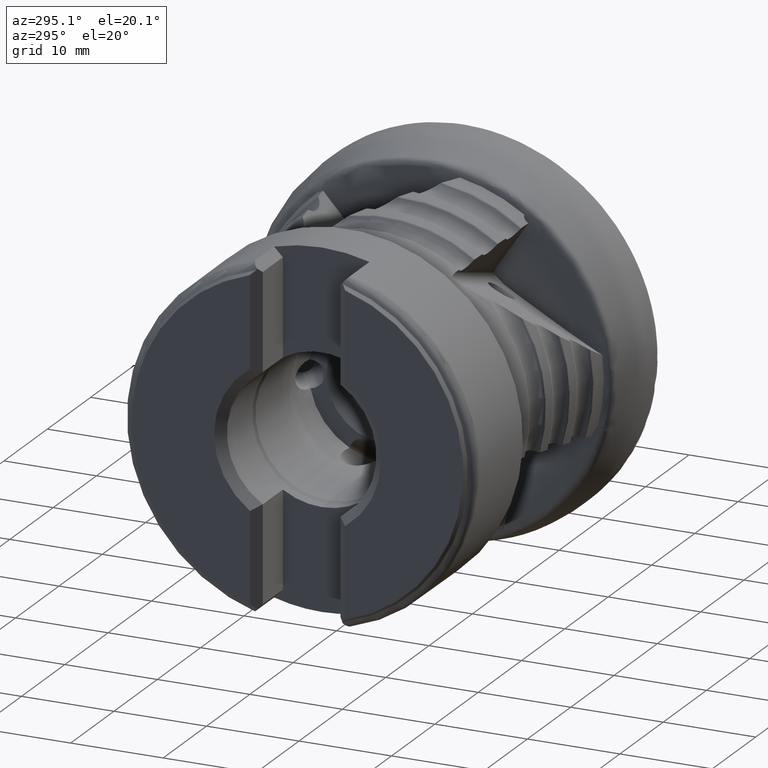
[diagram: clean part render]
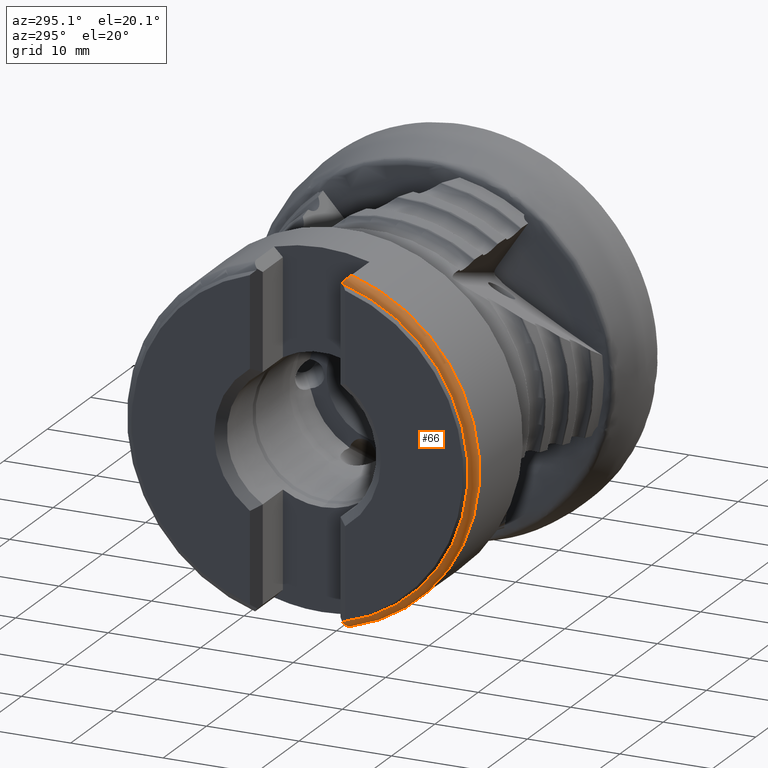
[diagram: same view with one face highlighted and labeled with its STEP entity id]
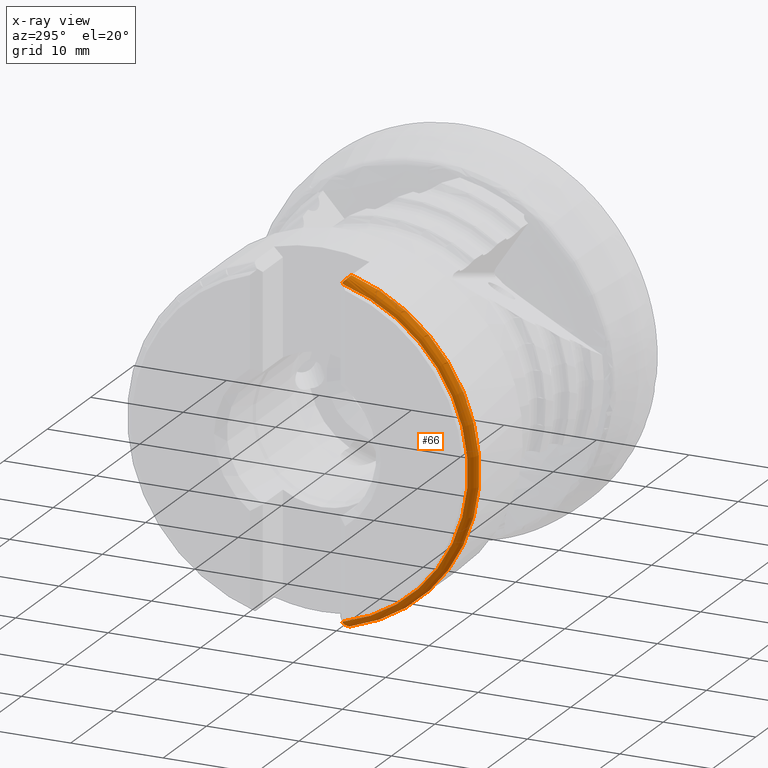
[diagram: x-ray of the same camera — body ghosted, the highlighted face saturated]
A machine part, auxiliary view. The second image highlights one B-rep face of the part: STEP entity #66.
The next image is the same camera in x-ray: the body ghosted, the highlighted face saturated — about 0% of this face is hidden behind the body in this view.
In plain terms, the highlighted toroidal blend (fillet) surface has major radius 18 mm and minor (blend) radius 1 mm.
Its self-contained STEP definition (entity closure, byte-faithful):
#66 = ADVANCED_FACE ( 'Fl�che5', ( #1019 ), #2827, .T. ) ;
#364 = CARTESIAN_POINT ( 'NONE',  ( -38.28788730391736600, -4.897146027994828000, -18.02857384429833600 ) ) ;
#408 = CARTESIAN_POINT ( 'NONE',  ( -38.48385936006484100, -4.633859360064851000, -17.76317287354032000 ) ) ;
#447 = CARTESIAN_POINT ( 'NONE',  ( -38.45024981219128100, -4.705336416484899000, -17.83522392082632600 ) ) ;
#518 = CARTESIAN_POINT ( 'NONE',  ( -37.65735244124207500, -5.154084291463807000, -18.28757543023375100 ) ) ;
#569 = CARTESIAN_POINT ( 'NONE',  ( -38.51749371846307900, -4.667493718463092000, 17.65216539934463200 ) ) ;
#588 = CARTESIAN_POINT ( 'NONE',  ( -38.05469920655795600, -5.048530082540030300, -18.18117357655765400 ) ) ;
#609 = CARTESIAN_POINT ( 'NONE',  ( -37.76384815131154900, -5.139883962065202800, -18.27326106620954600 ) ) ;
#638 = CARTESIAN_POINT ( 'NONE',  ( -37.54999999999999000, -5.154084291463735900, -18.28757543023368000 ) ) ;
#672 = CARTESIAN_POINT ( 'NONE',  ( -38.40472224844603500, -4.772432079247459500, -17.90285839001865000 ) ) ;
#705 = CARTESIAN_POINT ( 'NONE',  ( -38.21677240891903400, -4.953890980019086700, -18.08577448218575500 ) ) ;
#734 = CARTESIAN_POINT ( 'NONE',  ( -37.96101930603809600, -5.087606744889878700, -18.22056404096349900 ) ) ;
#873 = DIRECTION ( 'NONE',  ( 1.000000000000000000, -0.0000000000000000000, -0.0000000000000000000 ) ) ;
#1019 = FACE_OUTER_BOUND ( 'NONE', #4344, .T. ) ;
#1097 = CARTESIAN_POINT ( 'NONE',  ( -38.52876197310683200, 0.0000000000000000000, 0.0000000000000000000 ) ) ;
#1111 = VERTEX_POINT ( 'NONE', #4212 ) ;
#1338 = ORIENTED_EDGE ( 'NONE', *, *, #8216, .T. ) ;
#1361 = CARTESIAN_POINT ( 'NONE',  ( -38.50218209336419800, -4.652182093364219300, 17.70894815240613300 ) ) ;
#1438 = AXIS2_PLACEMENT_3D ( 'NONE', #1097, #873, #2386 ) ;
#1670 = B_SPLINE_CURVE_WITH_KNOTS ( 'NONE', 3,
 ( #1975, #1986, #1876, #1869, #1854, #1852 ),
 .UNSPECIFIED., .F., .F.,
 ( 4, 2, 4 ),
 ( 0.0000000000000000000, 0.0006327907338325851300, 0.001265581467665170300 ),
 .UNSPECIFIED. ) ;
#1740 = CARTESIAN_POINT ( 'NONE',  ( -37.54999999999999000, -5.154084291463731500, 18.28757543023368400 ) ) ;
#1852 = CARTESIAN_POINT ( 'NONE',  ( -38.48385936006481200, -4.633859360064824400, 17.76317287354040200 ) ) ;
#1854 = CARTESIAN_POINT ( 'NONE',  ( -38.41673218027916200, -4.776617996238919700, 17.90707792168646900 ) ) ;
#1869 = CARTESIAN_POINT ( 'NONE',  ( -38.29914039232142600, -4.905996709428838400, 18.03749560043177200 ) ) ;
#1876 = CARTESIAN_POINT ( 'NONE',  ( -37.97070616721687500, -5.097372263158278300, 18.23040798045639100 ) ) ;
#1975 = CARTESIAN_POINT ( 'NONE',  ( -37.54999999999999000, -5.154084291463731500, 18.28757543023368400 ) ) ;
#1986 = CARTESIAN_POINT ( 'NONE',  ( -37.76415761276612700, -5.154084291463736800, 18.28757543023367700 ) ) ;
#2117 = CARTESIAN_POINT ( 'NONE',  ( -38.51757395159036400, -4.667573951590378000, -17.65174767903679900 ) ) ;
#2386 = DIRECTION ( 'NONE',  ( 0.0000000000000000000, 0.0000000000000000000, -1.000000000000000000 ) ) ;
#2528 = CARTESIAN_POINT ( 'NONE',  ( -38.48385936006484100, -4.633859360064851000, -17.76317287354032000 ) ) ;
#2579 = CARTESIAN_POINT ( 'NONE',  ( -38.48385936006481200, -4.633859360064824400, 17.76317287354040200 ) ) ;
#2827 = TOROIDAL_SURFACE ( 'NONE', #3485, 17.99999999999999600, 0.9999999999999974500 ) ;
#3019 = DIRECTION ( 'NONE',  ( 0.0000000000000000000, 0.0000000000000000000, -1.000000000000000000 ) ) ;
#3059 = CARTESIAN_POINT ( 'NONE',  ( -37.54999999999999000, 0.0000000000000000000, 0.0000000000000000000 ) ) ;
#3068 = EDGE_CURVE ( 'NONE', #9523, #3877, #8559, .T. ) ;
#3141 = ORIENTED_EDGE ( 'NONE', *, *, #3068, .T. ) ;
#3174 = CARTESIAN_POINT ( 'NONE',  ( -38.52876197310683200, -4.678761973106848200, 17.59349912322756600 ) ) ;
#3317 = EDGE_CURVE ( 'NONE', #1111, #7396, #9241, .T. ) ;
#3485 = AXIS2_PLACEMENT_3D ( 'NONE', #3059, #3904, #3019 ) ;
#3533 = B_SPLINE_CURVE_WITH_KNOTS ( 'NONE', 3,
 ( #6261, #569, #1361, #2579 ),
 .UNSPECIFIED., .F., .F.,
 ( 4, 4 ),
 ( 0.001372400753466143000, 0.001552639090064840800 ),
 .UNSPECIFIED. ) ;
#3817 = EDGE_CURVE ( 'NONE', #1111, #3877, #8300, .T. ) ;
#3877 = VERTEX_POINT ( 'NONE', #9028 ) ;
#3904 = DIRECTION ( 'NONE',  ( 1.000000000000000000, -0.0000000000000000000, -0.0000000000000000000 ) ) ;
#4212 = CARTESIAN_POINT ( 'NONE',  ( -38.48385936006484100, -4.633859360064851000, -17.76317287354032000 ) ) ;
#4344 = EDGE_LOOP ( 'NONE', ( #6562, #1338, #5642, #3141, #5311, #7288 ) ) ;
#4693 = EDGE_CURVE ( 'NONE', #5377, #7396, #6736, .T. ) ;
#5205 = EDGE_CURVE ( 'NONE', #9523, #7603, #3533, .T. ) ;
#5311 = ORIENTED_EDGE ( 'NONE', *, *, #3817, .F. ) ;
#5377 = VERTEX_POINT ( 'NONE', #1740 ) ;
#5628 = AXIS2_PLACEMENT_3D ( 'NONE', #6327, #6315, #6336 ) ;
#5642 = ORIENTED_EDGE ( 'NONE', *, *, #5205, .F. ) ;
#5911 = CARTESIAN_POINT ( 'NONE',  ( -38.48385936006481200, -4.633859360064824400, 17.76317287354040200 ) ) ;
#6261 = CARTESIAN_POINT ( 'NONE',  ( -38.52876197310683200, -4.678761973106848200, 17.59349912322756600 ) ) ;
#6315 = DIRECTION ( 'NONE',  ( 1.000000000000000000, -0.0000000000000000000, -0.0000000000000000000 ) ) ;
#6327 = CARTESIAN_POINT ( 'NONE',  ( -37.54999999999999000, 0.0000000000000000000, 0.0000000000000000000 ) ) ;
#6336 = DIRECTION ( 'NONE',  ( 0.0000000000000000000, 0.0000000000000000000, -1.000000000000000000 ) ) ;
#6562 = ORIENTED_EDGE ( 'NONE', *, *, #4693, .F. ) ;
#6736 = CIRCLE ( 'NONE', #5628, 18.99999999999999300 ) ;
#6782 = CARTESIAN_POINT ( 'NONE',  ( -37.54999999999999000, -5.154084291463735900, -18.28757543023368000 ) ) ;
#7288 = ORIENTED_EDGE ( 'NONE', *, *, #3317, .T. ) ;
#7396 = VERTEX_POINT ( 'NONE', #6782 ) ;
#7603 = VERTEX_POINT ( 'NONE', #5911 ) ;
#8068 = CARTESIAN_POINT ( 'NONE',  ( -38.52876197310683200, -4.678761973106847300, -17.59349912322756600 ) ) ;
#8216 = EDGE_CURVE ( 'NONE', #5377, #7603, #1670, .T. ) ;
#8300 = B_SPLINE_CURVE_WITH_KNOTS ( 'NONE', 3,
 ( #2528, #8815, #2117, #8068 ),
 .UNSPECIFIED., .F., .F.,
 ( 4, 4 ),
 ( 0.0009228124973433809600, 0.001103267274029202500 ),
 .UNSPECIFIED. ) ;
#8559 = CIRCLE ( 'NONE', #1438, 18.20499999999999500 ) ;
#8815 = CARTESIAN_POINT ( 'NONE',  ( -38.50242642143783200, -4.652426421437847500, -17.70822508224822300 ) ) ;
#9028 = CARTESIAN_POINT ( 'NONE',  ( -38.52876197310683200, -4.678761973106847300, -17.59349912322756600 ) ) ;
#9241 = B_SPLINE_CURVE_WITH_KNOTS ( 'NONE', 3,
 ( #408, #447, #672, #364, #705, #588, #734, #609, #518, #638 ),
 .UNSPECIFIED., .F., .F.,
 ( 4, 2, 2, 2, 4 ),
 ( 8.673617379884034500E-019, 0.0003165693517978836800, 0.0006331387035957665000, 0.0009497080553936493700, 0.001266277407191532100 ),
 .UNSPECIFIED. ) ;
#9523 = VERTEX_POINT ( 'NONE', #3174 ) ;